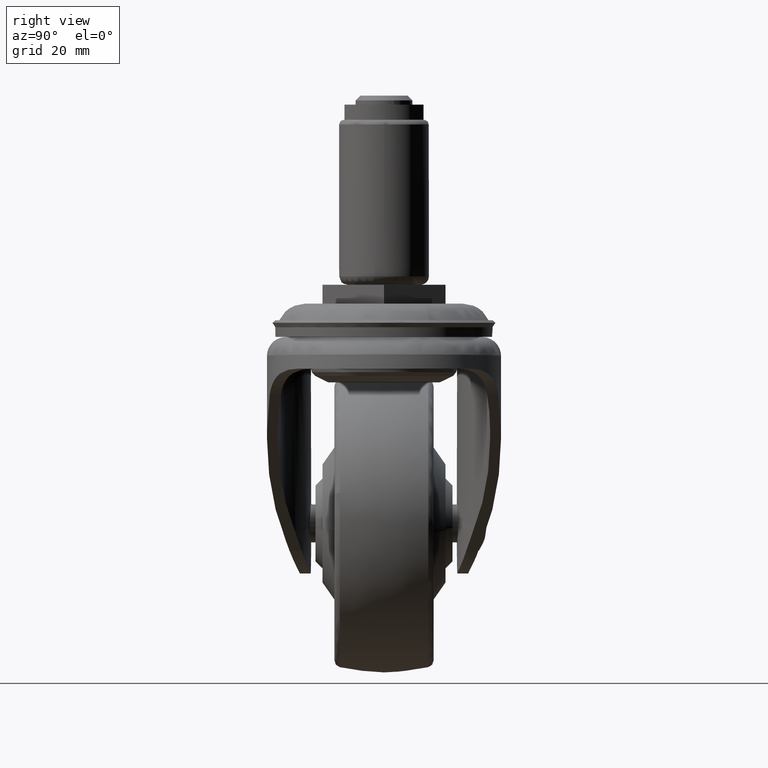
[diagram: clean part render]
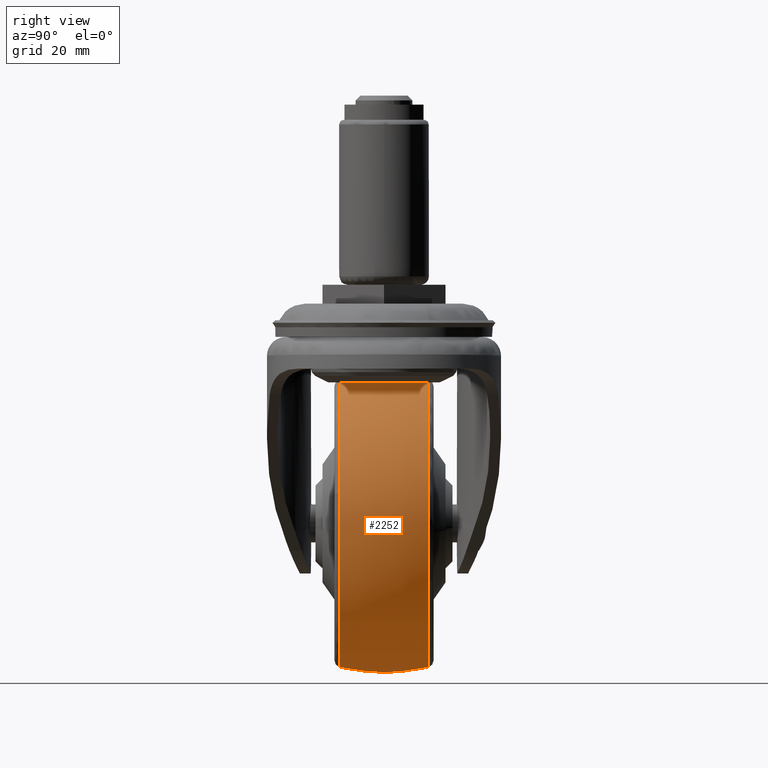
[diagram: same view with one face highlighted and labeled with its STEP entity id]
A machine part, right view. The second image highlights one B-rep face of the part: STEP entity #2252.
In plain terms, the highlighted face is a freeform B-spline surface patch.
Its self-contained STEP definition (entity closure, byte-faithful):
#1626=CARTESIAN_POINT('',(-25.0,9.350623439186691,-20.108380556166939));
#1627=VERTEX_POINT('',#1626);
#1641=CARTESIAN_POINT('',(2.821780601786998,9.350641905762327,-62.731403515729703));
#1642=VERTEX_POINT('',#1641);
#1643=CARTESIAN_POINT('',(2.821780601786998,9.350641905762327,-62.731403515729696));
#1644=CARTESIAN_POINT('',(5.391714266067815,9.350639393455106,-56.885736331041301));
#1645=CARTESIAN_POINT('',(5.391714147406729,9.350636640136866,-50.500097295438373));
#1646=CARTESIAN_POINT('',(5.391713582652892,9.350623536034492,-20.108380718231313));
#1647=CARTESIAN_POINT('',(-25.0,9.350623439186691,-20.108380556166939));
#1655=(BOUNDED_CURVE()B_SPLINE_CURVE(2,(#1643,#1644,#1645,#1646,#1647),.UNSPECIFIED.,.F.,.U.)B_SPLINE_CURVE_WITH_KNOTS((3,2,3),(0.181662001677396,0.250000000000000,0.500000000000000),.UNSPECIFIED.)CURVE()GEOMETRIC_REPRESENTATION_ITEM()RATIONAL_B_SPLINE_CURVE((0.883644840941636,0.919937054816097,1.0,0.707106781186548,1.0))REPRESENTATION_ITEM(''));
#1656=EDGE_CURVE('',#1642,#1627,#1655,.T.);
#1713=CARTESIAN_POINT('',(-25.0,9.350649350649350,-80.891813214015144));
#1714=VERTEX_POINT('',#1713);
#1715=CARTESIAN_POINT('',(-25.0,9.350649350649350,-80.891813214015144));
#1716=CARTESIAN_POINT('',(-5.162090703610321,9.350649499020376,-80.891813462298074));
#1717=CARTESIAN_POINT('',(2.821780601786998,9.350641905762327,-62.731403515729696));
#1725=(BOUNDED_CURVE()B_SPLINE_CURVE(2,(#1715,#1716,#1717),.UNSPECIFIED.,.F.,.U.)B_SPLINE_CURVE_WITH_KNOTS((3,3),(0.0,0.181662001677396),.UNSPECIFIED.)CURVE()GEOMETRIC_REPRESENTATION_ITEM()RATIONAL_B_SPLINE_CURVE((1.0,0.787169726370451,0.883644840941636))REPRESENTATION_ITEM(''));
#1726=EDGE_CURVE('',#1714,#1642,#1725,.T.);
#1728=CARTESIAN_POINT('',(-55.188447802944282,9.350636589617551,-46.990963664482962));
#1729=VERTEX_POINT('',#1728);
#1730=CARTESIAN_POINT('',(-55.188447802944289,9.350636589617551,-46.990963664482962));
#1731=CARTESIAN_POINT('',(-55.391716182990457,9.350636918738669,-48.739644450632255));
#1732=CARTESIAN_POINT('',(-55.391716094724281,9.350637288333248,-50.500099665143367));
#1733=CARTESIAN_POINT('',(-55.391714570936465,9.350643668849150,-80.891813056285201));
#1734=CARTESIAN_POINT('',(-25.0,9.350649350649350,-80.891813214015144));
#1742=(BOUNDED_CURVE()B_SPLINE_CURVE(2,(#1730,#1731,#1732,#1733,#1734),.UNSPECIFIED.,.F.,.U.)B_SPLINE_CURVE_WITH_KNOTS((3,2,3),(0.730000110737764,0.750000000000000,1.0),.UNSPECIFIED.)CURVE()GEOMETRIC_REPRESENTATION_ITEM()RATIONAL_B_SPLINE_CURVE((0.956886336149540,0.976568672232284,1.0,0.707106781186548,1.0))REPRESENTATION_ITEM(''));
#1743=EDGE_CURVE('',#1729,#1714,#1742,.T.);
#1794=CARTESIAN_POINT('',(-16.868627224279319,-9.350649153713707,-79.783832835032783));
#1795=VERTEX_POINT('',#1794);
#1796=CARTESIAN_POINT('',(4.700853495944230,-9.350642572676611,-44.056840509547023));
#1797=VERTEX_POINT('',#1796);
#1798=CARTESIAN_POINT('',(-16.868627224279329,-9.350649153713707,-79.783832835032769));
#1799=CARTESIAN_POINT('',(5.391713214015145,-9.350647979814802,-73.602683166580661));
#1800=CARTESIAN_POINT('',(5.391713214015149,-9.350643635013629,-50.500098625805776));
#1801=CARTESIAN_POINT('',(5.391713214015149,-9.350643022170541,-47.241431846648339));
#1802=CARTESIAN_POINT('',(4.700853495944230,-9.350642572676611,-44.056840509547023));
#1810=(BOUNDED_CURVE()B_SPLINE_CURVE(2,(#1798,#1799,#1800,#1801,#1802),.UNSPECIFIED.,.F.,.U.)B_SPLINE_CURVE_WITH_KNOTS((3,2,3),(0.045601389135569,0.250000000000000,0.286296732691555),.UNSPECIFIED.)CURVE()GEOMETRIC_REPRESENTATION_ITEM()RATIONAL_B_SPLINE_CURVE((0.912639460443640,0.760532131771674,1.0,0.957475732518236,0.927299400793990))REPRESENTATION_ITEM(''));
#1811=EDGE_CURVE('',#1795,#1797,#1810,.T.);
#1896=CARTESIAN_POINT('',(-25.0,-9.350649350649340,-80.891813214015144));
#1897=VERTEX_POINT('',#1896);
#1898=CARTESIAN_POINT('',(-25.0,-9.350649350649340,-80.891813214015144));
#1899=CARTESIAN_POINT('',(-20.858826948136223,-9.350649350649338,-80.891813214015144));
#1900=CARTESIAN_POINT('',(-16.868627224279329,-9.350649153713707,-79.783832835032769));
#1908=(BOUNDED_CURVE()B_SPLINE_CURVE(2,(#1898,#1899,#1900),.UNSPECIFIED.,.F.,.U.)B_SPLINE_CURVE_WITH_KNOTS((3,3),(0.0,0.045601389135569),.UNSPECIFIED.)CURVE()GEOMETRIC_REPRESENTATION_ITEM()RATIONAL_B_SPLINE_CURVE((1.0,0.946574649414874,0.912639460443640))REPRESENTATION_ITEM(''));
#1909=EDGE_CURVE('',#1897,#1795,#1908,.T.);
#1958=CARTESIAN_POINT('',(-25.0,-9.350637919377917,-20.108384037596430));
#1959=VERTEX_POINT('',#1958);
#1960=CARTESIAN_POINT('',(4.700853495944230,-9.350642572676611,-44.056840509547023));
#1961=CARTESIAN_POINT('',(-0.494488498292006,-9.350637919377917,-20.108384037596434));
#1962=CARTESIAN_POINT('',(-25.0,-9.350637919377917,-20.108384037596430));
#1970=(BOUNDED_CURVE()B_SPLINE_CURVE(2,(#1960,#1961,#1962),.UNSPECIFIED.,.F.,.U.)B_SPLINE_CURVE_WITH_KNOTS((3,3),(0.286296732691555,0.500000000000000),.UNSPECIFIED.)CURVE()GEOMETRIC_REPRESENTATION_ITEM()RATIONAL_B_SPLINE_CURVE((0.927299400793990,0.749631048668312,1.0))REPRESENTATION_ITEM(''));
#1971=EDGE_CURVE('',#1797,#1959,#1970,.T.);
#1973=CARTESIAN_POINT('',(-55.188447081994909,-9.350639624133320,-46.990963780993098));
#1974=VERTEX_POINT('',#1973);
#1988=CARTESIAN_POINT('',(-55.188447081994916,-9.350639624133320,-46.990963780993098));
#1989=CARTESIAN_POINT('',(-55.391715476980785,-9.350639874990922,-48.739644548997802));
#1990=CARTESIAN_POINT('',(-55.391715409703927,-9.350640156697573,-50.500099744770871));
#1991=CARTESIAN_POINT('',(-55.391714248266354,-9.350645019955582,-80.891813093792720));
#1992=CARTESIAN_POINT('',(-25.0,-9.350649350649340,-80.891813214015144));
#2000=(BOUNDED_CURVE()B_SPLINE_CURVE(2,(#1988,#1989,#1990,#1991,#1992),.UNSPECIFIED.,.F.,.U.)B_SPLINE_CURVE_WITH_KNOTS((3,2,3),(0.730000110918583,0.750000000000000,1.0),.UNSPECIFIED.)CURVE()GEOMETRIC_REPRESENTATION_ITEM()RATIONAL_B_SPLINE_CURVE((0.956886336505437,0.976568672444127,1.0,0.707106781186548,1.0))REPRESENTATION_ITEM(''));
#2001=EDGE_CURVE('',#1974,#1897,#2000,.T.);
#2160=CARTESIAN_POINT('',(-54.950383638808297,-10.296549197088328,-47.018617365391535));
#2161=CARTESIAN_POINT('',(-56.289316711442140,-5.236506368770334,-46.862977547969045));
#2162=CARTESIAN_POINT('',(-56.289316711442147,7.715038E-015,-46.862977547969059));
#2163=CARTESIAN_POINT('',(-56.289316711442140,5.236506368770344,-46.862977547969066));
#2164=CARTESIAN_POINT('',(-54.950383638808312,10.296549197088334,-47.018617365391542));
#2165=CARTESIAN_POINT('',(-55.152051363827255,-10.296549197088327,-48.753517798856514));
#2166=CARTESIAN_POINT('',(-56.500000000000000,-5.236506368770335,-48.675436773204652));
#2167=CARTESIAN_POINT('',(-56.499999999999993,7.715038E-015,-48.675436773204659));
#2168=CARTESIAN_POINT('',(-56.500000000000000,5.236506368770345,-48.675436773204652));
#2169=CARTESIAN_POINT('',(-55.152051363827255,10.296549197088336,-48.753517798856507));
#2170=CARTESIAN_POINT('',(-55.152051363827255,-10.296549197088330,-50.500100000000010));
#2171=CARTESIAN_POINT('',(-56.500000000000000,-5.236506368770335,-50.500100000000003));
#2172=CARTESIAN_POINT('',(-56.500000000000000,7.715038E-015,-50.500100000000003));
#2173=CARTESIAN_POINT('',(-56.500000000000007,5.236506368770344,-50.500099999999989));
#2174=CARTESIAN_POINT('',(-55.152051363827240,10.296549197088330,-50.500099999999982));
#2175=CARTESIAN_POINT('',(-55.152051363827255,-10.296549197088328,-80.652151363827244));
#2176=CARTESIAN_POINT('',(-56.500000000000007,-5.236506368770334,-82.000099999999989));
#2177=CARTESIAN_POINT('',(-56.500000000000000,7.715038E-015,-82.000099999999989));
#2178=CARTESIAN_POINT('',(-56.500000000000007,5.236506368770344,-82.000099999999989));
#2179=CARTESIAN_POINT('',(-55.152051363827255,10.296549197088334,-80.652151363827215));
#2180=CARTESIAN_POINT('',(-25.000000000000007,-10.296549197088330,-80.652151363827244));
#2181=CARTESIAN_POINT('',(-25.000000000000004,-5.236506368770335,-82.000099999999989));
#2182=CARTESIAN_POINT('',(-25.0,7.715038E-015,-82.000099999999989));
#2183=CARTESIAN_POINT('',(-25.000000000000004,5.236506368770344,-82.000099999999989));
#2184=CARTESIAN_POINT('',(-25.0,10.296549197088330,-80.652151363827230));
#2185=CARTESIAN_POINT('',(5.152051363827242,-10.296549197088328,-80.652151363827244));
#2186=CARTESIAN_POINT('',(6.499999999999998,-5.236506368770334,-82.000099999999989));
#2187=CARTESIAN_POINT('',(6.499999999999996,7.715038E-015,-82.000099999999989));
#2188=CARTESIAN_POINT('',(6.499999999999998,5.236506368770344,-82.000099999999989));
#2189=CARTESIAN_POINT('',(5.152051363827246,10.296549197088334,-80.652151363827215));
#2190=CARTESIAN_POINT('',(5.152051363827244,-10.296549197088330,-50.500100000000010));
#2191=CARTESIAN_POINT('',(6.499999999999999,-5.236506368770335,-50.500100000000003));
#2192=CARTESIAN_POINT('',(6.499999999999999,7.715038E-015,-50.500100000000003));
#2193=CARTESIAN_POINT('',(6.499999999999998,5.236506368770344,-50.500099999999989));
#2194=CARTESIAN_POINT('',(5.152051363827246,10.296549197088330,-50.500099999999982));
#2195=CARTESIAN_POINT('',(5.152051363827242,-10.296549197088328,-20.348048636172763));
#2196=CARTESIAN_POINT('',(6.499999999999998,-5.236506368770334,-19.000100000000007));
#2197=CARTESIAN_POINT('',(6.499999999999996,7.715038E-015,-19.000100000000010));
#2198=CARTESIAN_POINT('',(6.499999999999998,5.236506368770344,-19.000100000000007));
#2199=CARTESIAN_POINT('',(5.152051363827246,10.296549197088334,-20.348048636172763));
#2200=CARTESIAN_POINT('',(-25.000000000000007,-10.296549197088330,-20.348048636172756));
#2201=CARTESIAN_POINT('',(-25.000000000000004,-5.236506368770335,-19.000099999999996));
#2202=CARTESIAN_POINT('',(-25.0,7.715038E-015,-19.000100000000000));
#2203=CARTESIAN_POINT('',(-25.000000000000004,5.236506368770344,-19.000099999999996));
#2204=CARTESIAN_POINT('',(-25.0,10.296549197088330,-20.348048636172749));
#2212=(BOUNDED_SURFACE()B_SPLINE_SURFACE(2,2,((#2160,#2165,#2170,#2175,#2180,#2185,#2190,#2195,#2200),(#2161,#2166,#2171,#2176,#2181,#2186,#2191,#2196,#2201),(#2162,#2167,#2172,#2177,#2182,#2187,#2192,#2197,#2202),(#2163,#2168,#2173,#2178,#2183,#2188,#2193,#2198,#2203),(#2164,#2169,#2174,#2179,#2184,#2189,#2194,#2199,#2204)),.UNSPECIFIED.,.F.,.F.,.U.)B_SPLINE_SURFACE_WITH_KNOTS((3,2,3),(3,2,2,2,3),(0.0,10.772103718447200,21.544207436894389),(0.0,4.175271837691034,56.366180696701008,108.557089555711000,160.747998414720910),.UNSPECIFIED.)GEOMETRIC_REPRESENTATION_ITEM()RATIONAL_B_SPLINE_SURFACE(((0.889247260426734,0.907538401297480,0.929313568135483,0.657123925877267,0.929313568135483,0.657123925877267,0.929313568135483,0.657123925877267,0.929313568135483),(0.914642611511919,0.933456115469776,0.955853143101057,0.675890239305233,0.955853143101057,0.675890239305233,0.955853143101057,0.675890239305233,0.955853143101057),(0.956886126402807,0.976568547383107,1.0,0.707106781186548,1.0,0.707106781186548,1.0,0.707106781186548,1.0),(0.914642611511919,0.933456115469776,0.955853143101057,0.675890239305233,0.955853143101057,0.675890239305233,0.955853143101057,0.675890239305233,0.955853143101057),(0.889247260426734,0.907538401297480,0.929313568135483,0.657123925877267,0.929313568135483,0.657123925877267,0.929313568135483,0.657123925877267,0.929313568135483)))REPRESENTATION_ITEM('')SURFACE());
#2213=ORIENTED_EDGE('',*,*,#1743,.T.);
#2214=ORIENTED_EDGE('',*,*,#1726,.T.);
#2215=ORIENTED_EDGE('',*,*,#1656,.T.);
#2216=CARTESIAN_POINT('',(-25.0,-9.350637919377917,-20.108384037596423));
#2217=CARTESIAN_POINT('',(-24.999999999999993,-4.740998623396473,-19.000100000000003));
#2218=CARTESIAN_POINT('',(-25.0,7.715038E-015,-19.000100000000000));
#2219=CARTESIAN_POINT('',(-25.000000000000004,4.740991072374803,-19.000100000000000));
#2220=CARTESIAN_POINT('',(-25.000000000000007,9.350623439186691,-20.108380556166942));
#2228=(BOUNDED_CURVE()B_SPLINE_CURVE(2,(#2216,#2217,#2218,#2219,#2220),.UNSPECIFIED.,.F.,.U.)B_SPLINE_CURVE_WITH_KNOTS((3,2,3),(0.409347713272639,0.500000000000000,0.590652148139917),.UNSPECIFIED.)CURVE()GEOMETRIC_REPRESENTATION_ITEM()RATIONAL_B_SPLINE_CURVE((0.934279875988907,0.959862897800457,1.0,0.959862959161274,0.934279954210588))REPRESENTATION_ITEM(''));
#2229=EDGE_CURVE('',#1959,#1627,#2228,.T.);
#2230=ORIENTED_EDGE('',*,*,#2229,.F.);
#2231=ORIENTED_EDGE('',*,*,#1971,.F.);
#2232=ORIENTED_EDGE('',*,*,#1811,.F.);
#2233=ORIENTED_EDGE('',*,*,#1909,.F.);
#2234=ORIENTED_EDGE('',*,*,#2001,.F.);
#2235=CARTESIAN_POINT('',(-55.188447081994902,-9.350639624133320,-46.990963780993098));
#2236=CARTESIAN_POINT('',(-56.289318921818577,-4.740999512379138,-46.862996563437640));
#2237=CARTESIAN_POINT('',(-56.289318920867437,-9.087333E-014,-46.862996555256899));
#2238=CARTESIAN_POINT('',(-56.289318919916276,4.740997929962290,-46.862996547076165));
#2239=CARTESIAN_POINT('',(-55.188447802944282,9.350636589617551,-46.990963664482962));
#2247=(BOUNDED_CURVE()B_SPLINE_CURVE(2,(#2235,#2236,#2237,#2238,#2239),.UNSPECIFIED.,.F.,.U.)B_SPLINE_CURVE_WITH_KNOTS((3,2,3),(0.409347696956694,0.500000000000000,0.590652274000472),.UNSPECIFIED.)CURVE()GEOMETRIC_REPRESENTATION_ITEM()RATIONAL_B_SPLINE_CURVE((0.893999435026655,0.918479475358944,0.956886118190660,0.918479487663516,0.893999450712298))REPRESENTATION_ITEM(''));
#2248=EDGE_CURVE('',#1974,#1729,#2247,.T.);
#2249=ORIENTED_EDGE('',*,*,#2248,.T.);
#2250=EDGE_LOOP('',(#2213,#2214,#2215,#2230,#2231,#2232,#2233,#2234,#2249));
#2251=FACE_OUTER_BOUND('',#2250,.T.);
#2252=ADVANCED_FACE('',(#2251),#2212,.T.);